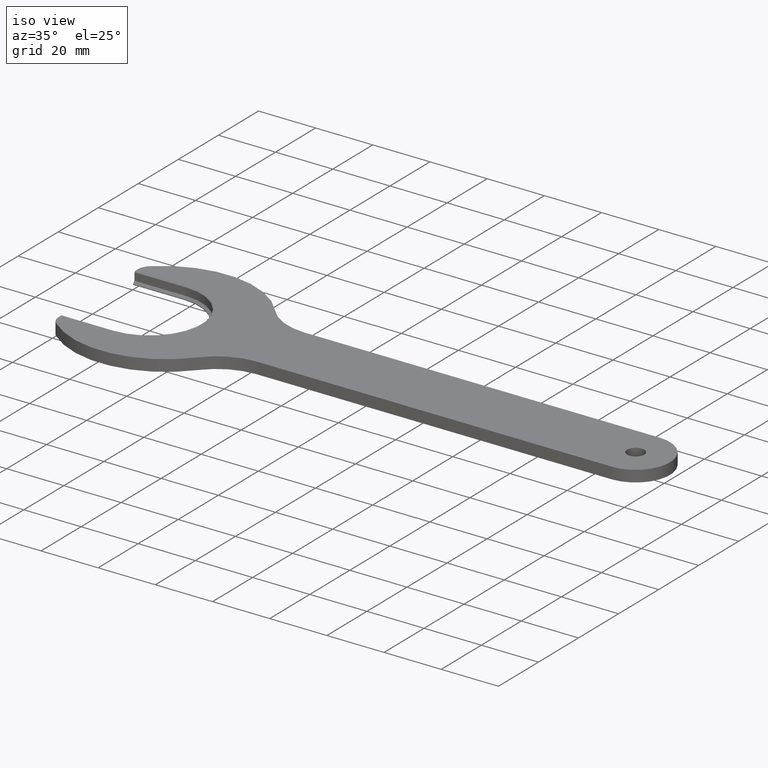
[diagram: clean part render]
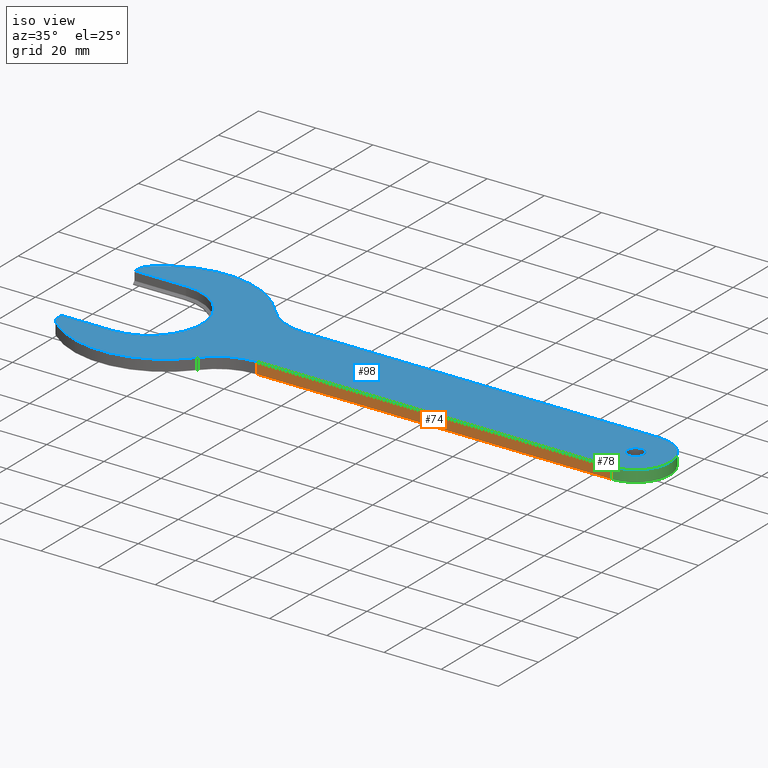
[diagram: same view with three faces highlighted in distinct colors, each labeled with its STEP entity id]
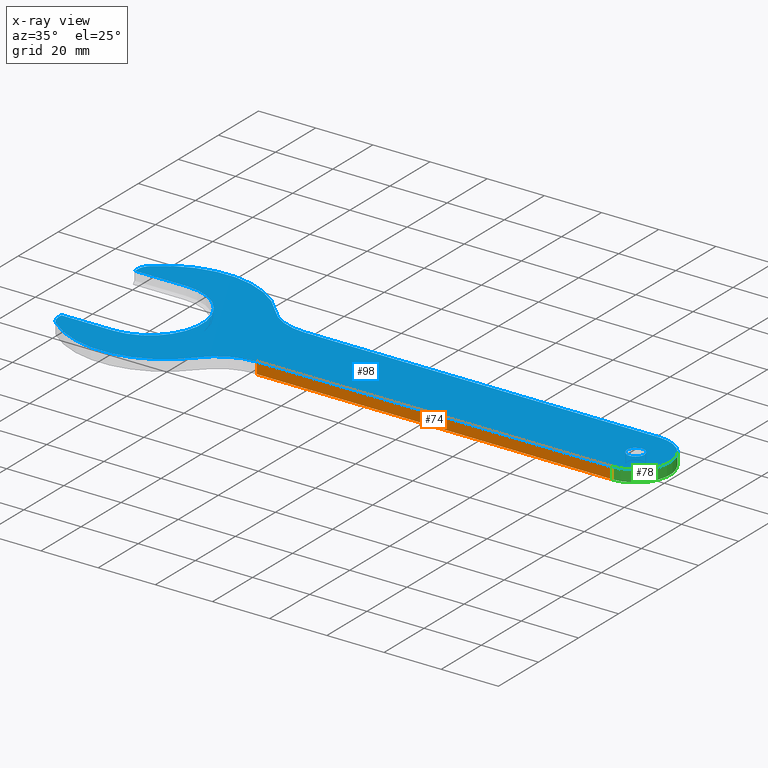
[diagram: x-ray of the same camera — body ghosted, the three highlighted faces saturated]
A machine part, iso view with three faces highlighted in distinct colors.
The next image is the same camera in x-ray (body ghosted, the three faces saturated) — at least one of them is partly hidden behind the body in this view.
Their STEP definitions:

[orange] entity #74 — the highlighted planar face has unit normal (0, -1, 0).
#74 = ADVANCED_FACE( '', ( #156 ), #157, .T. );
#156 = FACE_OUTER_BOUND( '', #244, .T. );
#157 = PLANE( '', #245 );
#244 = EDGE_LOOP( '', ( #396, #397, #398, #399 ) );
#245 = AXIS2_PLACEMENT_3D( '', #400, #401, #402 );
#396 = ORIENTED_EDGE( '', *, *, #569, .F. );
#397 = ORIENTED_EDGE( '', *, *, #581, .F. );
#398 = ORIENTED_EDGE( '', *, *, #582, .T. );
#399 = ORIENTED_EDGE( '', *, *, #583, .T. );
#400 = CARTESIAN_POINT( '', ( 170.000000000000, -12.0000000000000, 2.00000000000000 ) );
#401 = DIRECTION( '', ( 0.000000000000000, -1.00000000000000, 0.000000000000000 ) );
#402 = DIRECTION( '', ( 0.000000000000000, 0.000000000000000, -1.00000000000000 ) );
#569 = EDGE_CURVE( '', #687, #689, #690, .T. );
#581 = EDGE_CURVE( '', #707, #687, #708, .T. );
#582 = EDGE_CURVE( '', #707, #709, #710, .T. );
#583 = EDGE_CURVE( '', #709, #689, #711, .T. );
#687 = VERTEX_POINT( '', #846 );
#689 = VERTEX_POINT( '', #848 );
#690 = LINE( '', #849, #850 );
#707 = VERTEX_POINT( '', #871 );
#708 = LINE( '', #872, #873 );
#709 = VERTEX_POINT( '', #874 );
#710 = LINE( '', #875, #876 );
#711 = LINE( '', #877, #878 );
#846 = CARTESIAN_POINT( '', ( 170.000000000000, -12.0000000000000, -2.00000000000000 ) );
#848 = CARTESIAN_POINT( '', ( 45.8319727664486, -12.0000000000000, -2.00000000000000 ) );
#849 = CARTESIAN_POINT( '', ( 170.000000000000, -12.0000000000000, -2.00000000000000 ) );
#850 = VECTOR( '', #982, 1000.00000000000 );
#871 = CARTESIAN_POINT( '', ( 170.000000000000, -12.0000000000000, 2.00000000000000 ) );
#872 = CARTESIAN_POINT( '', ( 170.000000000000, -12.0000000000000, 2.00000000000000 ) );
#873 = VECTOR( '', #999, 1000.00000000000 );
#874 = CARTESIAN_POINT( '', ( 45.8319727664486, -12.0000000000000, 2.00000000000000 ) );
#875 = CARTESIAN_POINT( '', ( 170.000000000000, -12.0000000000000, 2.00000000000000 ) );
#876 = VECTOR( '', #1000, 1000.00000000000 );
#877 = CARTESIAN_POINT( '', ( 45.8319727664486, -12.0000000000000, 2.00000000000000 ) );
#878 = VECTOR( '', #1001, 1000.00000000000 );
#982 = DIRECTION( '', ( -1.00000000000000, 0.000000000000000, 0.000000000000000 ) );
#999 = DIRECTION( '', ( 0.000000000000000, 0.000000000000000, -1.00000000000000 ) );
#1000 = DIRECTION( '', ( -1.00000000000000, 0.000000000000000, 0.000000000000000 ) );
#1001 = DIRECTION( '', ( 0.000000000000000, 0.000000000000000, -1.00000000000000 ) );

[blue] entity #98 — the highlighted planar face has unit normal (0, 0, 1).
#98 = ADVANCED_FACE( '', ( #193, #194 ), #195, .T. );
#193 = FACE_BOUND( '', #281, .T. );
#194 = FACE_OUTER_BOUND( '', #282, .T. );
#195 = PLANE( '', #283 );
#281 = EDGE_LOOP( '', ( #496 ) );
#282 = EDGE_LOOP( '', ( #497, #498, #499, #500, #501, #502, #503, #504, #505, #506, #507, #508, #509, #510 ) );
#283 = AXIS2_PLACEMENT_3D( '', #511, #512, #513 );
#496 = ORIENTED_EDGE( '', *, *, #595, .F. );
#497 = ORIENTED_EDGE( '', *, *, #609, .F. );
#498 = ORIENTED_EDGE( '', *, *, #611, .T. );
#499 = ORIENTED_EDGE( '', *, *, #543, .T. );
#500 = ORIENTED_EDGE( '', *, *, #547, .T. );
#501 = ORIENTED_EDGE( '', *, *, #591, .F. );
#502 = ORIENTED_EDGE( '', *, *, #598, .T. );
#503 = ORIENTED_EDGE( '', *, *, #606, .F. );
#504 = ORIENTED_EDGE( '', *, *, #603, .F. );
#505 = ORIENTED_EDGE( '', *, *, #582, .F. );
#506 = ORIENTED_EDGE( '', *, *, #588, .F. );
#507 = ORIENTED_EDGE( '', *, *, #555, .F. );
#508 = ORIENTED_EDGE( '', *, *, #579, .F. );
#509 = ORIENTED_EDGE( '', *, *, #601, .F. );
#510 = ORIENTED_EDGE( '', *, *, #537, .T. );
#511 = CARTESIAN_POINT( '', ( 45.8319727664486, 32.0000000000000, 2.00000000000000 ) );
#512 = DIRECTION( '', ( 0.000000000000000, 0.000000000000000, 1.00000000000000 ) );
#513 = DIRECTION( '', ( 1.00000000000000, 0.000000000000000, 0.000000000000000 ) );
#537 = EDGE_CURVE( '', #637, #638, #639, .T. );
#543 = EDGE_CURVE( '', #648, #646, #649, .F. );
#547 = EDGE_CURVE( '', #646, #652, #655, .T. );
#555 = EDGE_CURVE( '', #665, #667, #668, .T. );
#579 = EDGE_CURVE( '', #703, #665, #705, .T. );
#582 = EDGE_CURVE( '', #707, #709, #710, .T. );
#588 = EDGE_CURVE( '', #667, #707, #716, .T. );
#591 = EDGE_CURVE( '', #718, #652, #720, .T. );
#595 = EDGE_CURVE( '', #724, #724, #725, .T. );
#598 = EDGE_CURVE( '', #718, #728, #729, .T. );
#601 = EDGE_CURVE( '', #637, #703, #732, .T. );
#603 = EDGE_CURVE( '', #709, #734, #735, .T. );
#606 = EDGE_CURVE( '', #734, #728, #738, .T. );
#609 = EDGE_CURVE( '', #740, #638, #742, .T. );
#611 = EDGE_CURVE( '', #740, #648, #744, .T. );
#637 = VERTEX_POINT( '', #779 );
#638 = VERTEX_POINT( '', #780 );
#639 = CIRCLE( '', #781, 5.00000000000000 );
#646 = VERTEX_POINT( '', #790 );
#648 = VERTEX_POINT( '', #793 );
#649 = CIRCLE( '', #794, 18.4000000000000 );
#652 = VERTEX_POINT( '', #798 );
#655 = LINE( '', #802, #803 );
#665 = VERTEX_POINT( '', #816 );
#667 = VERTEX_POINT( '', #819 );
#668 = LINE( '', #820, #821 );
#703 = VERTEX_POINT( '', #866 );
#705 = CIRCLE( '', #869, 20.0000000000000 );
#707 = VERTEX_POINT( '', #871 );
#709 = VERTEX_POINT( '', #874 );
#710 = LINE( '', #875, #876 );
#716 = CIRCLE( '', #885, 12.0000000000000 );
#718 = VERTEX_POINT( '', #887 );
#720 = LINE( '', #890, #891 );
#724 = VERTEX_POINT( '', #896 );
#725 = CIRCLE( '', #897, 3.00000000000000 );
#728 = VERTEX_POINT( '', #900 );
#729 = CIRCLE( '', #901, 5.00000000000000 );
#732 = CIRCLE( '', #905, 32.5000000000000 );
#734 = VERTEX_POINT( '', #907 );
#735 = CIRCLE( '', #908, 20.0000000000000 );
#738 = CIRCLE( '', #912, 32.5000000000000 );
#740 = VERTEX_POINT( '', #914 );
#742 = LINE( '', #917, #918 );
#744 = LINE( '', #920, #921 );
#779 = CARTESIAN_POINT( '', ( -16.2727272727273, 23.5707361383449, 2.00000000000000 ) );
#780 = CARTESIAN_POINT( '', ( -18.0000000000000, 19.7906228862918, 2.00000000000000 ) );
#781 = AXIS2_PLACEMENT_3D( '', #938, #939, #940 );
#790 = CARTESIAN_POINT( '', ( 3.37991353654976E-015, -18.4000000000000, 2.00000000000000 ) );
#793 = CARTESIAN_POINT( '', ( 0.000000000000000, 18.4000000000000, 2.00000000000000 ) );
#794 = AXIS2_PLACEMENT_3D( '', #947, #948, #949 );
#798 = CARTESIAN_POINT( '', ( -18.0000000000000, -18.4000000000000, 2.00000000000000 ) );
#802 = CARTESIAN_POINT( '', ( 45.8319727664486, -18.4000000000000, 2.00000000000000 ) );
#803 = VECTOR( '', #952, 1000.00000000000 );
#816 = CARTESIAN_POINT( '', ( 45.8319727664486, 12.0000000000000, 2.00000000000000 ) );
#819 = CARTESIAN_POINT( '', ( 170.000000000000, 12.0000000000000, 2.00000000000000 ) );
#820 = CARTESIAN_POINT( '', ( 45.8319727664486, 12.0000000000000, 2.00000000000000 ) );
#821 = VECTOR( '', #960, 1000.00000000000 );
#866 = CARTESIAN_POINT( '', ( 30.2769355220872, 19.4285714285714, 2.00000000000000 ) );
#869 = AXIS2_PLACEMENT_3D( '', #996, #997, #998 );
#871 = CARTESIAN_POINT( '', ( 170.000000000000, -12.0000000000000, 2.00000000000000 ) );
#874 = CARTESIAN_POINT( '', ( 45.8319727664486, -12.0000000000000, 2.00000000000000 ) );
#875 = CARTESIAN_POINT( '', ( 170.000000000000, -12.0000000000000, 2.00000000000000 ) );
#876 = VECTOR( '', #1000, 1000.00000000000 );
#885 = AXIS2_PLACEMENT_3D( '', #1004, #1005, #1006 );
#887 = CARTESIAN_POINT( '', ( -18.0000000000000, -19.7906228862918, 2.00000000000000 ) );
#890 = CARTESIAN_POINT( '', ( -18.0000000000000, -17.1000000000000, 2.00000000000000 ) );
#891 = VECTOR( '', #1008, 1000.00000000000 );
#896 = CARTESIAN_POINT( '', ( 173.000000000000, 0.000000000000000, 2.00000000000000 ) );
#897 = AXIS2_PLACEMENT_3D( '', #1010, #1011, #1012 );
#900 = CARTESIAN_POINT( '', ( -16.2727272727272, -23.5707361383449, 2.00000000000000 ) );
#901 = AXIS2_PLACEMENT_3D( '', #1013, #1014, #1015 );
#905 = AXIS2_PLACEMENT_3D( '', #1017, #1018, #1019 );
#907 = CARTESIAN_POINT( '', ( 30.2769355220873, -19.4285714285714, 2.00000000000000 ) );
#908 = AXIS2_PLACEMENT_3D( '', #1020, #1021, #1022 );
#912 = AXIS2_PLACEMENT_3D( '', #1024, #1025, #1026 );
#914 = CARTESIAN_POINT( '', ( -18.0000000000000, 18.4000000000000, 2.00000000000000 ) );
#917 = CARTESIAN_POINT( '', ( -18.0000000000000, 21.9619250064100, 2.00000000000000 ) );
#918 = VECTOR( '', #1028, 1000.00000000000 );
#920 = CARTESIAN_POINT( '', ( 45.8319727664486, 18.4000000000000, 2.00000000000000 ) );
#921 = VECTOR( '', #1029, 1000.00000000000 );
#938 = CARTESIAN_POINT( '', ( -13.0000000000000, 19.7906228862918, 2.00000000000000 ) );
#939 = DIRECTION( '', ( 0.000000000000000, 0.000000000000000, 1.00000000000000 ) );
#940 = DIRECTION( '', ( 1.00000000000000, 0.000000000000000, 0.000000000000000 ) );
#947 = CARTESIAN_POINT( '', ( 0.000000000000000, 0.000000000000000, 2.00000000000000 ) );
#948 = DIRECTION( '', ( 0.000000000000000, 0.000000000000000, 1.00000000000000 ) );
#949 = DIRECTION( '', ( 1.00000000000000, 0.000000000000000, 0.000000000000000 ) );
#952 = DIRECTION( '', ( -1.00000000000000, 0.000000000000000, 0.000000000000000 ) );
#960 = DIRECTION( '', ( 1.00000000000000, 0.000000000000000, 0.000000000000000 ) );
#996 = CARTESIAN_POINT( '', ( 45.8319727664486, 32.0000000000000, 2.00000000000000 ) );
#997 = DIRECTION( '', ( 0.000000000000000, 0.000000000000000, 1.00000000000000 ) );
#998 = DIRECTION( '', ( 1.00000000000000, 0.000000000000000, 0.000000000000000 ) );
#1000 = DIRECTION( '', ( -1.00000000000000, 0.000000000000000, 0.000000000000000 ) );
#1004 = CARTESIAN_POINT( '', ( 170.000000000000, 0.000000000000000, 2.00000000000000 ) );
#1005 = DIRECTION( '', ( 0.000000000000000, 0.000000000000000, -1.00000000000000 ) );
#1006 = DIRECTION( '', ( -1.00000000000000, 0.000000000000000, 0.000000000000000 ) );
#1008 = DIRECTION( '', ( 0.000000000000000, 1.00000000000000, 0.000000000000000 ) );
#1010 = CARTESIAN_POINT( '', ( 170.000000000000, 0.000000000000000, 2.00000000000000 ) );
#1011 = DIRECTION( '', ( 0.000000000000000, 0.000000000000000, 1.00000000000000 ) );
#1012 = DIRECTION( '', ( 1.00000000000000, 0.000000000000000, 0.000000000000000 ) );
#1013 = CARTESIAN_POINT( '', ( -13.0000000000000, -19.7906228862918, 2.00000000000000 ) );
#1014 = DIRECTION( '', ( 0.000000000000000, 0.000000000000000, 1.00000000000000 ) );
#1015 = DIRECTION( '', ( 1.00000000000000, 0.000000000000000, 0.000000000000000 ) );
#1017 = CARTESIAN_POINT( '', ( 5.00000000000000, -1.00000000000000, 2.00000000000000 ) );
#1018 = DIRECTION( '', ( 0.000000000000000, 0.000000000000000, -1.00000000000000 ) );
#1019 = DIRECTION( '', ( 1.00000000000000, 0.000000000000000, 0.000000000000000 ) );
#1020 = CARTESIAN_POINT( '', ( 45.8319727664486, -32.0000000000000, 2.00000000000000 ) );
#1021 = DIRECTION( '', ( 0.000000000000000, 0.000000000000000, 1.00000000000000 ) );
#1022 = DIRECTION( '', ( 1.00000000000000, 0.000000000000000, 0.000000000000000 ) );
#1024 = CARTESIAN_POINT( '', ( 5.00000000000000, 1.00000000000000, 2.00000000000000 ) );
#1025 = DIRECTION( '', ( 0.000000000000000, 0.000000000000000, -1.00000000000000 ) );
#1026 = DIRECTION( '', ( 1.00000000000000, 0.000000000000000, 0.000000000000000 ) );
#1028 = DIRECTION( '', ( 7.13595324358029E-016, 1.00000000000000, 0.000000000000000 ) );
#1029 = DIRECTION( '', ( 1.00000000000000, 0.000000000000000, 0.000000000000000 ) );

[green] entity #78 — the highlighted cylindrical surface (partial cylindrical patch) has radius 12 mm, axis along (-0, -0, 1).
#78 = ADVANCED_FACE( '', ( #162 ), #163, .T. );
#162 = FACE_OUTER_BOUND( '', #250, .T. );
#163 = CYLINDRICAL_SURFACE( '', #251, 12.0000000000000 );
#250 = EDGE_LOOP( '', ( #412, #413, #414, #415 ) );
#251 = AXIS2_PLACEMENT_3D( '', #416, #417, #418 );
#412 = ORIENTED_EDGE( '', *, *, #568, .F. );
#413 = ORIENTED_EDGE( '', *, *, #556, .F. );
#414 = ORIENTED_EDGE( '', *, *, #588, .T. );
#415 = ORIENTED_EDGE( '', *, *, #581, .T. );
#416 = CARTESIAN_POINT( '', ( 170.000000000000, 0.000000000000000, 2.00000000000000 ) );
#417 = DIRECTION( '', ( -0.000000000000000, -0.000000000000000, 1.00000000000000 ) );
#418 = DIRECTION( '', ( -1.00000000000000, 0.000000000000000, 0.000000000000000 ) );
#556 = EDGE_CURVE( '', #667, #663, #669, .T. );
#568 = EDGE_CURVE( '', #663, #687, #688, .T. );
#581 = EDGE_CURVE( '', #707, #687, #708, .T. );
#588 = EDGE_CURVE( '', #667, #707, #716, .T. );
#663 = VERTEX_POINT( '', #813 );
#667 = VERTEX_POINT( '', #819 );
#669 = LINE( '', #822, #823 );
#687 = VERTEX_POINT( '', #846 );
#688 = CIRCLE( '', #847, 12.0000000000000 );
#707 = VERTEX_POINT( '', #871 );
#708 = LINE( '', #872, #873 );
#716 = CIRCLE( '', #885, 12.0000000000000 );
#813 = CARTESIAN_POINT( '', ( 170.000000000000, 12.0000000000000, -2.00000000000000 ) );
#819 = CARTESIAN_POINT( '', ( 170.000000000000, 12.0000000000000, 2.00000000000000 ) );
#822 = CARTESIAN_POINT( '', ( 170.000000000000, 12.0000000000000, 2.00000000000000 ) );
#823 = VECTOR( '', #961, 1000.00000000000 );
#846 = CARTESIAN_POINT( '', ( 170.000000000000, -12.0000000000000, -2.00000000000000 ) );
#847 = AXIS2_PLACEMENT_3D( '', #979, #980, #981 );
#871 = CARTESIAN_POINT( '', ( 170.000000000000, -12.0000000000000, 2.00000000000000 ) );
#872 = CARTESIAN_POINT( '', ( 170.000000000000, -12.0000000000000, 2.00000000000000 ) );
#873 = VECTOR( '', #999, 1000.00000000000 );
#885 = AXIS2_PLACEMENT_3D( '', #1004, #1005, #1006 );
#961 = DIRECTION( '', ( 0.000000000000000, 0.000000000000000, -1.00000000000000 ) );
#979 = CARTESIAN_POINT( '', ( 170.000000000000, 0.000000000000000, -2.00000000000000 ) );
#980 = DIRECTION( '', ( 0.000000000000000, 0.000000000000000, -1.00000000000000 ) );
#981 = DIRECTION( '', ( -1.00000000000000, 0.000000000000000, 0.000000000000000 ) );
#999 = DIRECTION( '', ( 0.000000000000000, 0.000000000000000, -1.00000000000000 ) );
#1004 = CARTESIAN_POINT( '', ( 170.000000000000, 0.000000000000000, 2.00000000000000 ) );
#1005 = DIRECTION( '', ( 0.000000000000000, 0.000000000000000, -1.00000000000000 ) );
#1006 = DIRECTION( '', ( -1.00000000000000, 0.000000000000000, 0.000000000000000 ) );